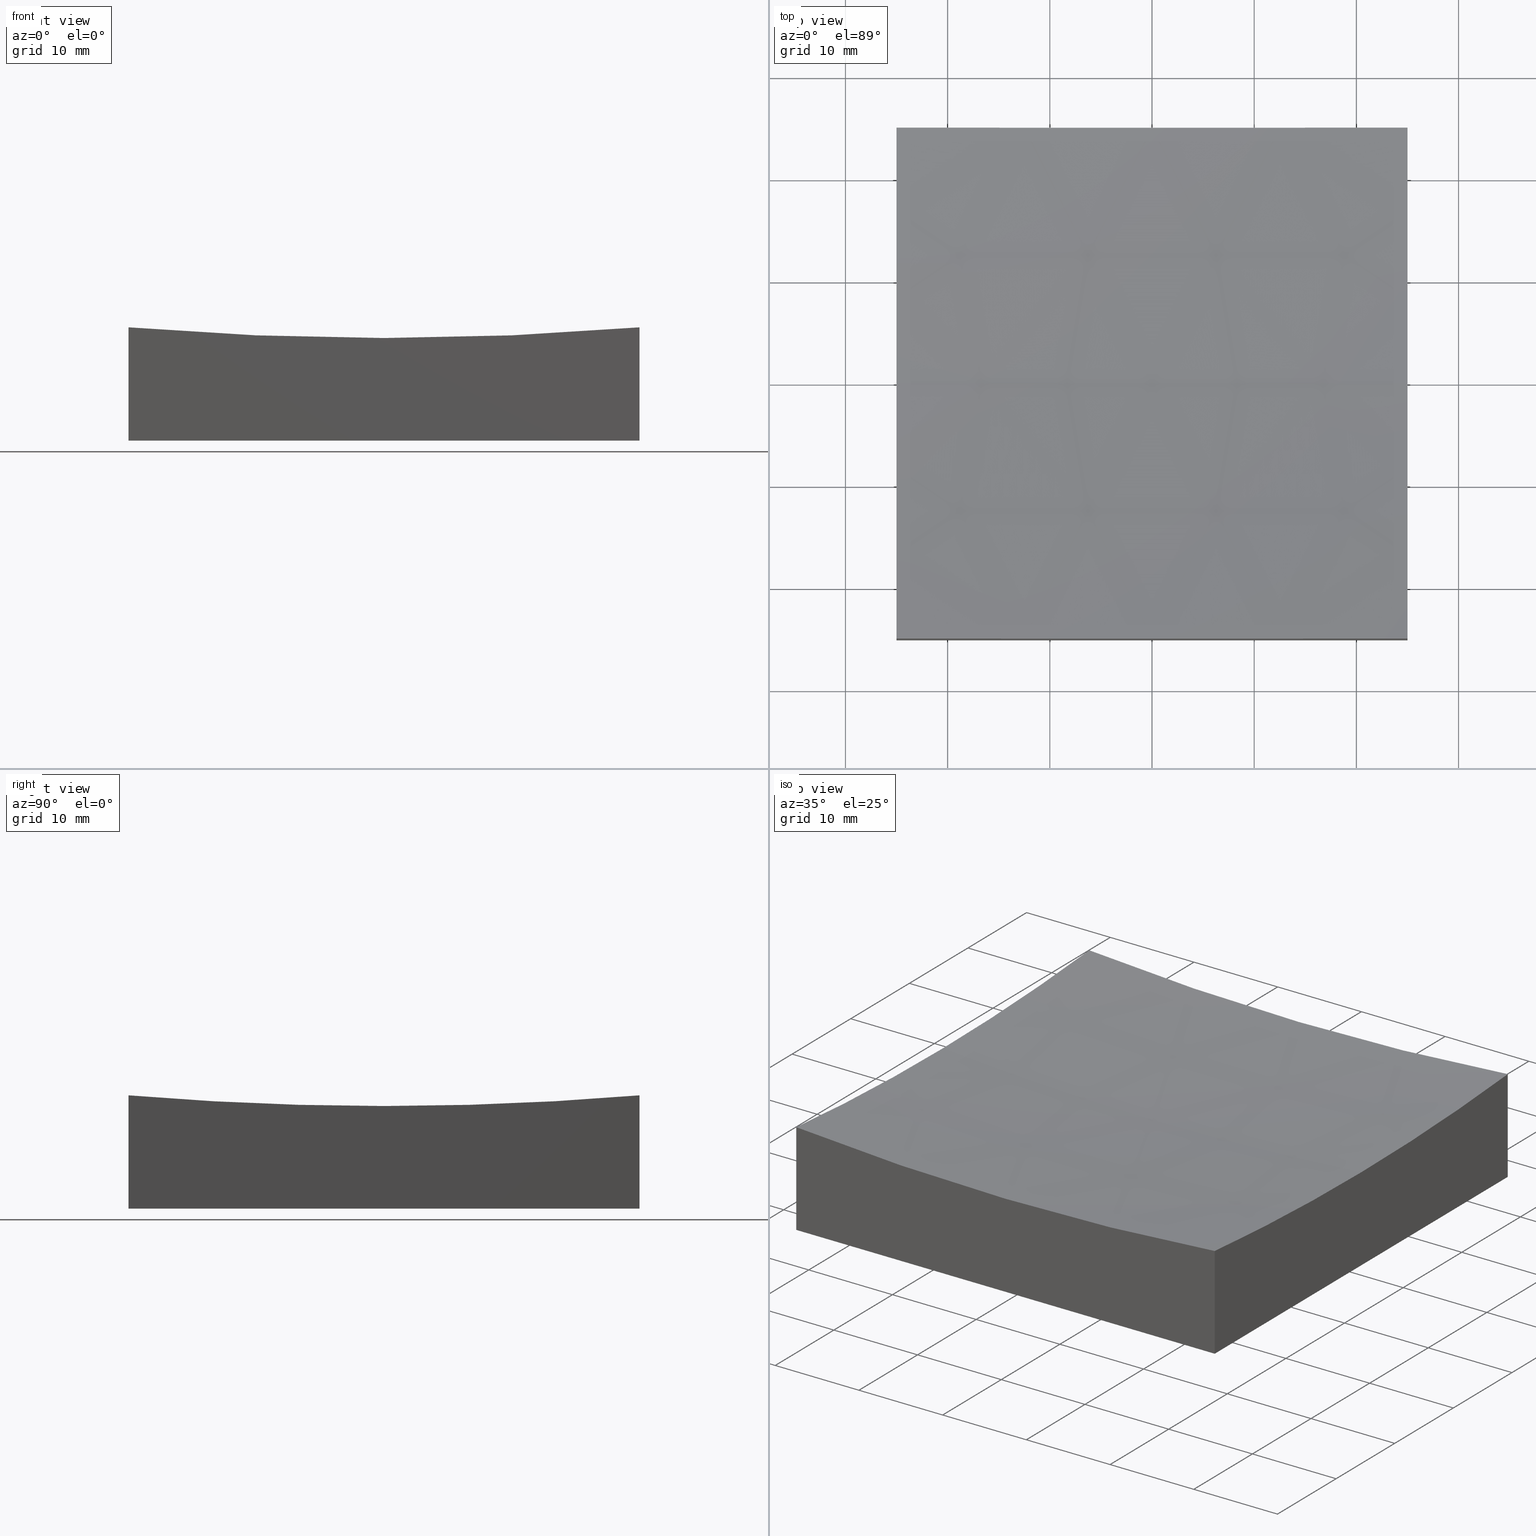
[diagram: canonical four-view strip — front | top / right | iso, engineering-drawing reading convention]
A machine part, canonical four-view strip (front | top / right | iso — engineering-drawing reading convention). The complete STEP part file that produces these views, byte-faithful:
ISO-10303-21;
HEADER;
FILE_DESCRIPTION (( 'STEP AP214' ),
    '1' );
FILE_NAME ('270053.STEP',
    '2020-06-08T03:46:58',
    ( '' ),
    ( '' ),
    'SwSTEP 2.0',
    'SolidWorks 2019',
    '' );
FILE_SCHEMA (( 'AUTOMOTIVE_DESIGN' ));
ENDSEC;

DATA;
#1 = ORIENTED_EDGE ( 'NONE', *, *, #73, .T. ) ;
#2 = ORIENTED_EDGE ( 'NONE', *, *, #36, .T. ) ;
#3 = AXIS2_PLACEMENT_3D ( 'NONE', #153, #94, #178 ) ;
#4 = FACE_OUTER_BOUND ( 'NONE', #246, .T. ) ;
#5 = ORIENTED_EDGE ( 'NONE', *, *, #174, .T. ) ;
#6 = FACE_OUTER_BOUND ( 'NONE', #11, .T. ) ;
#7 = DIRECTION ( 'NONE',  ( -0.0000000000000000000, 1.000000000000000000, 0.0000000000000000000 ) ) ;
#8 = ORIENTED_EDGE ( 'NONE', *, *, #233, .F. ) ;
#9 = DIRECTION ( 'NONE',  ( 0.0000000000000000000, 1.000000000000000000, 0.0000000000000000000 ) ) ;
#10 = DIRECTION ( 'NONE',  ( -0.0000000000000000000, 1.000000000000000000, 0.0000000000000000000 ) ) ;
#11 = EDGE_LOOP ( 'NONE', ( #127, #74, #135, #8, #23 ) ) ;
#12 = PRODUCT ( '270053', '270053', '', ( #228 ) ) ;
#13 = AXIS2_PLACEMENT_3D ( 'NONE', #236, #9, #46 ) ;
#14 = SURFACE_STYLE_FILL_AREA ( #71 ) ;
#15 = APPLICATION_CONTEXT ( 'automotive_design' ) ;
#16 = DIRECTION ( 'NONE',  ( 6.938893903907228378E-17, -1.000000000000000000, 0.0000000000000000000 ) ) ;
#17 = PRESENTATION_STYLE_ASSIGNMENT (( #192 ) ) ;
#18 = LINE ( 'NONE', #43, #232 ) ;
#19 = CARTESIAN_POINT ( 'NONE',  ( -25.00000000000000711, 24.99999999999999645, 11.09061780467546221 ) ) ;
#20 = EDGE_CURVE ( 'NONE', #110, #96, #18, .T. ) ;
#21 = CARTESIAN_POINT ( 'NONE',  ( 3.784158609365321758E-14, -25.00000000000000711, 309.0000000000000000 ) ) ;
#22 =( NAMED_UNIT ( * ) SI_UNIT ( $, .STERADIAN. ) SOLID_ANGLE_UNIT ( ) );
#23 = ORIENTED_EDGE ( 'NONE', *, *, #54, .F. ) ;
#24 = DIRECTION ( 'NONE',  ( 0.0000000000000000000, 1.000000000000000000, 0.0000000000000000000 ) ) ;
#25 = LINE ( 'NONE', #95, #191 ) ;
#26 = ADVANCED_FACE ( 'NONE', ( #68 ), #84, .F. ) ;
#27 = CARTESIAN_POINT ( 'NONE',  ( -25.00000000000000000, -25.00000000000000711, 50.00000000000000000 ) ) ;
#28 = DIRECTION ( 'NONE',  ( -0.0000000000000000000, -0.0000000000000000000, -1.000000000000000000 ) ) ;
#29 = APPLICATION_CONTEXT ( 'automotive_design' ) ;
#30 = ORIENTED_EDGE ( 'NONE', *, *, #36, .F. ) ;
#31 = EDGE_CURVE ( 'NONE', #155, #214, #158, .T. ) ;
#32 = AXIS2_PLACEMENT_3D ( 'NONE', #175, #162, #220 ) ;
#33 = EDGE_CURVE ( 'NONE', #96, #219, #231, .T. ) ;
#34 = ORIENTED_EDGE ( 'NONE', *, *, #241, .T. ) ;
#35 = SURFACE_SIDE_STYLE ('',( #14 ) ) ;
#36 = EDGE_CURVE ( 'NONE', #164, #212, #183, .T. ) ;
#37 = CARTESIAN_POINT ( 'NONE',  ( -25.00000000000000355, 24.99999999999999645, 50.00000000000000000 ) ) ;
#38 =( NAMED_UNIT ( * ) PLANE_ANGLE_UNIT ( ) SI_UNIT ( $, .RADIAN. ) );
#39 = PLANE ( 'NONE',  #59 ) ;
#40 = MANIFOLD_SOLID_BREP ( '�г�-��ת2', #206 ) ;
#41 = SURFACE_SIDE_STYLE ('',( #56 ) ) ;
#42 = AXIS2_PLACEMENT_3D ( 'NONE', #136, #7, #207 ) ;
#43 = CARTESIAN_POINT ( 'NONE',  ( -25.00000000000000355, 24.99999999999999645, 0.0000000000000000000 ) ) ;
#44 = CARTESIAN_POINT ( 'NONE',  ( -25.00000000000000355, -1.734723475976810250E-15, 309.0000000000000000 ) ) ;
#45 = PRODUCT_DEFINITION_FORMATION_WITH_SPECIFIED_SOURCE ( '�κ�', '', #12, .NOT_KNOWN. ) ;
#46 = DIRECTION ( 'NONE',  ( 0.0000000000000000000, 0.0000000000000000000, 1.000000000000000000 ) ) ;
#47 = DIRECTION ( 'NONE',  ( 0.0000000000000000000, 0.0000000000000000000, -1.000000000000000000 ) ) ;
#48 = ORIENTED_EDGE ( 'NONE', *, *, #180, .F. ) ;
#49 = PLANE ( 'NONE',  #171 ) ;
#50 = ADVANCED_FACE ( 'NONE', ( #213 ), #39, .F. ) ;
#51 = AXIS2_PLACEMENT_3D ( 'NONE', #21, #109, #90 ) ;
#52 = CIRCLE ( 'NONE', #210, 298.9565185775348368 ) ;
#53 = APPLICATION_PROTOCOL_DEFINITION ( 'draft international standard', 'automotive_design', 1998, #29 ) ;
#54 = EDGE_CURVE ( 'NONE', #245, #189, #98, .T. ) ;
#55 = AXIS2_PLACEMENT_3D ( 'NONE', #157, #60, #47 ) ;
#56 = SURFACE_STYLE_FILL_AREA ( #70 ) ;
#57 = SPHERICAL_SURFACE ( 'NONE', #42, 299.9999999999999432 ) ;
#58 = CARTESIAN_POINT ( 'NONE',  ( -25.00000000000000355, 3.061616997868399214E-15, 10.04348142246513831 ) ) ;
#59 = AXIS2_PLACEMENT_3D ( 'NONE', #88, #195, #172 ) ;
#60 = DIRECTION ( 'NONE',  ( 0.0000000000000000000, -1.000000000000000000, 0.0000000000000000000 ) ) ;
#61 = SHAPE_DEFINITION_REPRESENTATION ( #65, #179 ) ;
#62 = EDGE_CURVE ( 'NONE', #188, #219, #148, .T. ) ;
#63 = CARTESIAN_POINT ( 'NONE',  ( -25.00000000000000355, 24.99999999999999645, 50.00000000000000000 ) ) ;
#64 = APPLICATION_PROTOCOL_DEFINITION ( 'draft international standard', 'automotive_design', 1998, #15 ) ;
#65 = PRODUCT_DEFINITION_SHAPE ( 'NONE', 'NONE',  #149 ) ;
#66 = UNCERTAINTY_MEASURE_WITH_UNIT (LENGTH_MEASURE( 1.000000000000000082E-05 ), #196, 'distance_accuracy_value', 'NONE');
#67 = DIRECTION ( 'NONE',  ( 0.0000000000000000000, 0.0000000000000000000, 1.000000000000000000 ) ) ;
#68 = FACE_OUTER_BOUND ( 'NONE', #131, .T. ) ;
#69 = DIRECTION ( 'NONE',  ( 1.000000000000000000, 0.0000000000000000000, 3.700743415417189125E-16 ) ) ;
#70 = FILL_AREA_STYLE ('',( #143 ) ) ;
#71 = FILL_AREA_STYLE ('',( #139 ) ) ;
#72 =( GEOMETRIC_REPRESENTATION_CONTEXT ( 3 ) GLOBAL_UNCERTAINTY_ASSIGNED_CONTEXT ( ( #218 ) ) GLOBAL_UNIT_ASSIGNED_CONTEXT ( ( #147, #38, #103 ) ) REPRESENTATION_CONTEXT ( 'NONE', 'WORKASPACE' ) );
#73 = EDGE_CURVE ( 'NONE', #189, #212, #239, .T. ) ;
#74 = ORIENTED_EDGE ( 'NONE', *, *, #165, .T. ) ;
#75 = DIRECTION ( 'NONE',  ( 0.0000000000000000000, -0.0000000000000000000, 1.000000000000000000 ) ) ;
#76 = ORIENTED_EDGE ( 'NONE', *, *, #233, .T. ) ;
#77 = DIRECTION ( 'NONE',  ( -6.938893903907228378E-17, 1.000000000000000000, 0.0000000000000000000 ) ) ;
#78 = DIRECTION ( 'NONE',  ( 6.938893903907228378E-17, -1.000000000000000000, 0.0000000000000000000 ) ) ;
#79 = ORIENTED_EDGE ( 'NONE', *, *, #137, .F. ) ;
#80 = CARTESIAN_POINT ( 'NONE',  ( 24.99999999999999645, 24.99999999999999645, 11.09061780467546221 ) ) ;
#81 = ORIENTED_EDGE ( 'NONE', *, *, #91, .T. ) ;
#82 = FACE_OUTER_BOUND ( 'NONE', #168, .T. ) ;
#83 = AXIS2_PLACEMENT_3D ( 'NONE', #37, #104, #235 ) ;
#84 = PLANE ( 'NONE',  #83 ) ;
#85 = CARTESIAN_POINT ( 'NONE',  ( 24.99999999999999645, 1.734723475976804333E-15, 309.0000000000000000 ) ) ;
#86 = SURFACE_STYLE_USAGE ( .BOTH. , #41 ) ;
#87 = DIRECTION ( 'NONE',  ( -0.0000000000000000000, -0.0000000000000000000, -1.000000000000000000 ) ) ;
#88 = CARTESIAN_POINT ( 'NONE',  ( -25.00000000000000000, -25.00000000000000711, 50.00000000000000000 ) ) ;
#89 =( GEOMETRIC_REPRESENTATION_CONTEXT ( 3 ) GLOBAL_UNCERTAINTY_ASSIGNED_CONTEXT ( ( #130 ) ) GLOBAL_UNIT_ASSIGNED_CONTEXT ( ( #146, #203, #22 ) ) REPRESENTATION_CONTEXT ( 'NONE', 'WORKASPACE' ) );
#90 = DIRECTION ( 'NONE',  ( 0.0000000000000000000, 0.0000000000000000000, 1.000000000000000000 ) ) ;
#91 = EDGE_CURVE ( 'NONE', #214, #164, #159, .T. ) ;
#92 = VECTOR ( 'NONE', #87, 1000.000000000000000 ) ;
#93 = ORIENTED_EDGE ( 'NONE', *, *, #31, .F. ) ;
#94 = DIRECTION ( 'NONE',  ( 1.224646799147353207E-16, 1.000000000000000000, 3.574777501448733644E-32 ) ) ;
#95 = CARTESIAN_POINT ( 'NONE',  ( 25.00000000000000000, -25.00000000000000711, 50.00000000000000000 ) ) ;
#96 = VERTEX_POINT ( 'NONE', #114 ) ;
#97 = CARTESIAN_POINT ( 'NONE',  ( -25.00000000000000000, -25.00000000000000711, 0.0000000000000000000 ) ) ;
#98 = CIRCLE ( 'NONE', #176, 298.9565185775348368 ) ;
#99 = SPHERICAL_SURFACE ( 'NONE', #242, 299.9999999999999432 ) ;
#100 = ORIENTED_EDGE ( 'NONE', *, *, #165, .F. ) ;
#101 = VECTOR ( 'NONE', #134, 1000.000000000000000 ) ;
#102 = ORIENTED_EDGE ( 'NONE', *, *, #185, .T. ) ;
#103 =( NAMED_UNIT ( * ) SI_UNIT ( $, .STERADIAN. ) SOLID_ANGLE_UNIT ( ) );
#104 = DIRECTION ( 'NONE',  ( 1.000000000000000000, 6.938893903907228378E-17, -0.0000000000000000000 ) ) ;
#105 = DIRECTION ( 'NONE',  ( 1.000000000000000000, 6.938893903907228378E-17, -0.0000000000000000000 ) ) ;
#106 = ORIENTED_EDGE ( 'NONE', *, *, #20, .F. ) ;
#107 = CARTESIAN_POINT ( 'NONE',  ( 24.99999999999999645, 1.734723475976804333E-15, 309.0000000000000000 ) ) ;
#108 =( GEOMETRIC_REPRESENTATION_CONTEXT ( 3 ) GLOBAL_UNCERTAINTY_ASSIGNED_CONTEXT ( ( #66 ) ) GLOBAL_UNIT_ASSIGNED_CONTEXT ( ( #196, #250, #121 ) ) REPRESENTATION_CONTEXT ( 'NONE', 'WORKASPACE' ) );
#109 = DIRECTION ( 'NONE',  ( 0.0000000000000000000, 1.000000000000000000, 0.0000000000000000000 ) ) ;
#110 = VERTEX_POINT ( 'NONE', #117 ) ;
#111 = EDGE_LOOP ( 'NONE', ( #79, #129, #160, #1, #30 ) ) ;
#112 = PLANE ( 'NONE',  #32 ) ;
#113 = CARTESIAN_POINT ( 'NONE',  ( 1.437821085967289657E-13, 0.0000000000000000000, 9.000000000000063949 ) ) ;
#114 = CARTESIAN_POINT ( 'NONE',  ( 24.99999999999999645, 24.99999999999999645, 0.0000000000000000000 ) ) ;
#115 = PRODUCT_RELATED_PRODUCT_CATEGORY ( 'part', '', ( #12 ) ) ;
#116 = MECHANICAL_DESIGN_GEOMETRIC_PRESENTATION_REPRESENTATION (  '', ( #154 ), #89 ) ;
#117 = CARTESIAN_POINT ( 'NONE',  ( -25.00000000000000355, 24.99999999999999645, 0.0000000000000000000 ) ) ;
#118 = ORIENTED_EDGE ( 'NONE', *, *, #137, .T. ) ;
#119 = STYLED_ITEM ( 'NONE', ( #17 ), #179 ) ;
#120 = DIRECTION ( 'NONE',  ( -0.0000000000000000000, -0.0000000000000000000, -1.000000000000000000 ) ) ;
#121 =( NAMED_UNIT ( * ) SI_UNIT ( $, .STERADIAN. ) SOLID_ANGLE_UNIT ( ) );
#122 = ADVANCED_FACE ( 'NONE', ( #221 ), #57, .F. ) ;
#123 = PRODUCT_DEFINITION_CONTEXT ( 'detailed design', #29, 'design' ) ;
#124 = DIRECTION ( 'NONE',  ( -6.963113502515198163E-17, 1.000000000000000000, 0.0000000000000000000 ) ) ;
#125 = DIRECTION ( 'NONE',  ( 1.000000000000000000, 0.0000000000000000000, 0.0000000000000000000 ) ) ;
#126 = ADVANCED_FACE ( 'NONE', ( #82 ), #112, .T. ) ;
#127 = ORIENTED_EDGE ( 'NONE', *, *, #241, .F. ) ;
#128 = ADVANCED_FACE ( 'NONE', ( #4 ), #205, .T. ) ;
#129 = ORIENTED_EDGE ( 'NONE', *, *, #180, .T. ) ;
#130 = UNCERTAINTY_MEASURE_WITH_UNIT (LENGTH_MEASURE( 1.000000000000000082E-05 ), #146, 'distance_accuracy_value', 'NONE');
#131 = EDGE_LOOP ( 'NONE', ( #243, #81, #2, #227, #5 ) ) ;
#132 = DIRECTION ( 'NONE',  ( -6.963113502515198163E-17, 1.000000000000000000, 0.0000000000000000000 ) ) ;
#133 = CARTESIAN_POINT ( 'NONE',  ( 24.99999999999999645, 24.99999999999999645, 50.00000000000000000 ) ) ;
#134 = DIRECTION ( 'NONE',  ( 1.000000000000000000, 0.0000000000000000000, 0.0000000000000000000 ) ) ;
#135 = ORIENTED_EDGE ( 'NONE', *, *, #33, .F. ) ;
#136 = CARTESIAN_POINT ( 'NONE',  ( 3.784158609365321758E-14, 0.0000000000000000000, 309.0000000000000000 ) ) ;
#137 = EDGE_CURVE ( 'NONE', #151, #164, #163, .T. ) ;
#138 = PRESENTATION_LAYER_ASSIGNMENT (  '', '', ( #119 ) ) ;
#139 = FILL_AREA_STYLE_COLOUR ( '', #223 ) ;
#140 = VECTOR ( 'NONE', #16, 1000.000000000000000 ) ;
#141 = ADVANCED_FACE ( 'NONE', ( #6 ), #49, .T. ) ;
#142 = DIRECTION ( 'NONE',  ( 1.000000000000000000, 0.0000000000000000000, 0.0000000000000000000 ) ) ;
#143 = FILL_AREA_STYLE_COLOUR ( '', #190 ) ;
#144 = LINE ( 'NONE', #247, #92 ) ;
#145 = CIRCLE ( 'NONE', #55, 299.9999999999999432 ) ;
#146 =( LENGTH_UNIT ( ) NAMED_UNIT ( * ) SI_UNIT ( .MILLI., .METRE. ) );
#147 =( LENGTH_UNIT ( ) NAMED_UNIT ( * ) SI_UNIT ( .MILLI., .METRE. ) );
#148 = LINE ( 'NONE', #150, #101 ) ;
#149 = PRODUCT_DEFINITION ( 'δ֪', '', #45, #123 ) ;
#150 = CARTESIAN_POINT ( 'NONE',  ( -25.00000000000000000, -25.00000000000000711, 0.0000000000000000000 ) ) ;
#151 = VERTEX_POINT ( 'NONE', #113 ) ;
#152 = EDGE_LOOP ( 'NONE', ( #100, #224, #102, #240 ) ) ;
#153 = CARTESIAN_POINT ( 'NONE',  ( 3.784158609365321758E-14, 0.0000000000000000000, 309.0000000000000000 ) ) ;
#154 = STYLED_ITEM ( 'NONE', ( #248 ), #40 ) ;
#155 = VERTEX_POINT ( 'NONE', #209 ) ;
#156 = DIRECTION ( 'NONE',  ( 1.000000000000000000, 6.938893903907228378E-17, -0.0000000000000000000 ) ) ;
#157 = CARTESIAN_POINT ( 'NONE',  ( 3.784158609365321758E-14, 0.0000000000000000000, 309.0000000000000000 ) ) ;
#158 = CIRCLE ( 'NONE', #51, 298.9565185775348368 ) ;
#159 = CIRCLE ( 'NONE', #193, 298.9565185775348368 ) ;
#160 = ORIENTED_EDGE ( 'NONE', *, *, #54, .T. ) ;
#161 = DIRECTION ( 'NONE',  ( -0.0000000000000000000, -0.0000000000000000000, -1.000000000000000000 ) ) ;
#162 = DIRECTION ( 'NONE',  ( 0.0000000000000000000, 0.0000000000000000000, -1.000000000000000000 ) ) ;
#163 = CIRCLE ( 'NONE', #3, 299.9999999999999432 ) ;
#164 = VERTEX_POINT ( 'NONE', #58 ) ;
#165 = EDGE_CURVE ( 'NONE', #155, #219, #25, .T. ) ;
#166 = ORIENTED_EDGE ( 'NONE', *, *, #174, .F. ) ;
#167 = CARTESIAN_POINT ( 'NONE',  ( 0.0000000000000000000, 0.0000000000000000000, 0.0000000000000000000 ) ) ;
#168 = EDGE_LOOP ( 'NONE', ( #204, #200, #211, #166 ) ) ;
#169 = DIRECTION ( 'NONE',  ( -6.963113502515198163E-17, 1.000000000000000000, 0.0000000000000000000 ) ) ;
#170 = CARTESIAN_POINT ( 'NONE',  ( 24.99999999999999645, -9.629649721936179265E-32, 10.04348142246513831 ) ) ;
#171 = AXIS2_PLACEMENT_3D ( 'NONE', #133, #238, #77 ) ;
#172 = DIRECTION ( 'NONE',  ( 0.0000000000000000000, -0.0000000000000000000, 1.000000000000000000 ) ) ;
#173 = CARTESIAN_POINT ( 'NONE',  ( -25.00000000000000355, -1.734723475976810250E-15, 309.0000000000000000 ) ) ;
#174 = EDGE_CURVE ( 'NONE', #110, #188, #182, .T. ) ;
#175 = CARTESIAN_POINT ( 'NONE',  ( 0.0000000000000000000, 0.0000000000000000000, 0.0000000000000000000 ) ) ;
#176 = AXIS2_PLACEMENT_3D ( 'NONE', #107, #234, #252 ) ;
#177 = ORIENTED_EDGE ( 'NONE', *, *, #73, .F. ) ;
#178 = DIRECTION ( 'NONE',  ( -1.000000000000000000, 1.224646799147353207E-16, 0.0000000000000000000 ) ) ;
#179 = ADVANCED_BREP_SHAPE_REPRESENTATION ( '270053', ( #40, #201 ), #108 ) ;
#180 = EDGE_CURVE ( 'NONE', #151, #245, #145, .T. ) ;
#181 = CARTESIAN_POINT ( 'NONE',  ( -25.00000000000000355, 24.99999999999999645, 0.0000000000000000000 ) ) ;
#182 = LINE ( 'NONE', #181, #230 ) ;
#183 = CIRCLE ( 'NONE', #229, 298.9565185775348368 ) ;
#184 = AXIS2_PLACEMENT_3D ( 'NONE', #237, #24, #75 ) ;
#185 = EDGE_CURVE ( 'NONE', #214, #188, #208, .T. ) ;
#186 = CARTESIAN_POINT ( 'NONE',  ( 3.784158609365321758E-14, 0.0000000000000000000, 309.0000000000000000 ) ) ;
#187 = EDGE_LOOP ( 'NONE', ( #48, #118, #226, #93, #34 ) ) ;
#188 = VERTEX_POINT ( 'NONE', #97 ) ;
#189 = VERTEX_POINT ( 'NONE', #80 ) ;
#190 = COLOUR_RGB ( '',1.000000000000000000, 1.000000000000000000, 1.000000000000000000 ) ;
#191 = VECTOR ( 'NONE', #161, 1000.000000000000000 ) ;
#192 = SURFACE_STYLE_USAGE ( .BOTH. , #35 ) ;
#193 = AXIS2_PLACEMENT_3D ( 'NONE', #44, #156, #132 ) ;
#194 = ADVANCED_FACE ( 'NONE', ( #222 ), #99, .F. ) ;
#195 = DIRECTION ( 'NONE',  ( 0.0000000000000000000, 1.000000000000000000, 0.0000000000000000000 ) ) ;
#196 =( LENGTH_UNIT ( ) NAMED_UNIT ( * ) SI_UNIT ( .MILLI., .METRE. ) );
#197 = CARTESIAN_POINT ( 'NONE',  ( 24.99999999999999645, 24.99999999999999645, 0.0000000000000000000 ) ) ;
#198 = CARTESIAN_POINT ( 'NONE',  ( -25.00000000000000000, -25.00000000000000711, 11.09061780467546221 ) ) ;
#199 = PRESENTATION_LAYER_ASSIGNMENT (  '', '', ( #154 ) ) ;
#200 = ORIENTED_EDGE ( 'NONE', *, *, #33, .T. ) ;
#201 = AXIS2_PLACEMENT_3D ( 'NONE', #167, #67, #142 ) ;
#202 = ORIENTED_EDGE ( 'NONE', *, *, #215, .F. ) ;
#203 =( NAMED_UNIT ( * ) PLANE_ANGLE_UNIT ( ) SI_UNIT ( $, .RADIAN. ) );
#204 = ORIENTED_EDGE ( 'NONE', *, *, #20, .T. ) ;
#205 = PLANE ( 'NONE',  #184 ) ;
#206 = CLOSED_SHELL ( 'NONE', ( #194, #128, #26, #50, #141, #126, #122 ) ) ;
#207 = DIRECTION ( 'NONE',  ( 1.000000000000000000, 0.0000000000000000000, 3.700743415417189125E-16 ) ) ;
#208 = LINE ( 'NONE', #27, #251 ) ;
#209 = CARTESIAN_POINT ( 'NONE',  ( 25.00000000000000000, -25.00000000000000711, 11.09061780467546221 ) ) ;
#210 = AXIS2_PLACEMENT_3D ( 'NONE', #85, #105, #124 ) ;
#211 = ORIENTED_EDGE ( 'NONE', *, *, #62, .F. ) ;
#212 = VERTEX_POINT ( 'NONE', #19 ) ;
#213 = FACE_OUTER_BOUND ( 'NONE', #152, .T. ) ;
#214 = VERTEX_POINT ( 'NONE', #198 ) ;
#215 = EDGE_CURVE ( 'NONE', #212, #110, #244, .T. ) ;
#216 = MECHANICAL_DESIGN_GEOMETRIC_PRESENTATION_REPRESENTATION (  '', ( #119 ), #72 ) ;
#217 = DIRECTION ( 'NONE',  ( 1.000000000000000000, 6.938893903907228378E-17, -0.0000000000000000000 ) ) ;
#218 = UNCERTAINTY_MEASURE_WITH_UNIT (LENGTH_MEASURE( 1.000000000000000082E-05 ), #147, 'distance_accuracy_value', 'NONE');
#219 = VERTEX_POINT ( 'NONE', #249 ) ;
#220 = DIRECTION ( 'NONE',  ( -1.000000000000000000, 0.0000000000000000000, -0.0000000000000000000 ) ) ;
#221 = FACE_OUTER_BOUND ( 'NONE', #111, .T. ) ;
#222 = FACE_OUTER_BOUND ( 'NONE', #187, .T. ) ;
#223 = COLOUR_RGB ( '',1.000000000000000000, 1.000000000000000000, 1.000000000000000000 ) ;
#224 = ORIENTED_EDGE ( 'NONE', *, *, #31, .T. ) ;
#225 = VECTOR ( 'NONE', #120, 1000.000000000000000 ) ;
#226 = ORIENTED_EDGE ( 'NONE', *, *, #91, .F. ) ;
#227 = ORIENTED_EDGE ( 'NONE', *, *, #215, .T. ) ;
#228 = PRODUCT_CONTEXT ( 'NONE', #15, 'mechanical' ) ;
#229 = AXIS2_PLACEMENT_3D ( 'NONE', #173, #217, #169 ) ;
#230 = VECTOR ( 'NONE', #78, 1000.000000000000000 ) ;
#231 = LINE ( 'NONE', #197, #140 ) ;
#232 = VECTOR ( 'NONE', #125, 1000.000000000000000 ) ;
#233 = EDGE_CURVE ( 'NONE', #189, #96, #144, .T. ) ;
#234 = DIRECTION ( 'NONE',  ( 1.000000000000000000, 6.938893903907228378E-17, -0.0000000000000000000 ) ) ;
#235 = DIRECTION ( 'NONE',  ( -6.938893903907228378E-17, 1.000000000000000000, 0.0000000000000000000 ) ) ;
#236 = CARTESIAN_POINT ( 'NONE',  ( 3.784158609365321758E-14, 24.99999999999999645, 309.0000000000000000 ) ) ;
#237 = CARTESIAN_POINT ( 'NONE',  ( -25.00000000000000355, 24.99999999999999645, 50.00000000000000000 ) ) ;
#238 = DIRECTION ( 'NONE',  ( 1.000000000000000000, 6.938893903907228378E-17, -0.0000000000000000000 ) ) ;
#239 = CIRCLE ( 'NONE', #13, 298.9565185775348368 ) ;
#240 = ORIENTED_EDGE ( 'NONE', *, *, #62, .T. ) ;
#241 = EDGE_CURVE ( 'NONE', #155, #245, #52, .T. ) ;
#242 = AXIS2_PLACEMENT_3D ( 'NONE', #186, #10, #69 ) ;
#243 = ORIENTED_EDGE ( 'NONE', *, *, #185, .F. ) ;
#244 = LINE ( 'NONE', #63, #225 ) ;
#245 = VERTEX_POINT ( 'NONE', #170 ) ;
#246 = EDGE_LOOP ( 'NONE', ( #177, #76, #106, #202 ) ) ;
#247 = CARTESIAN_POINT ( 'NONE',  ( 24.99999999999999645, 24.99999999999999645, 50.00000000000000000 ) ) ;
#248 = PRESENTATION_STYLE_ASSIGNMENT (( #86 ) ) ;
#249 = CARTESIAN_POINT ( 'NONE',  ( 25.00000000000000000, -25.00000000000000711, 0.0000000000000000000 ) ) ;
#250 =( NAMED_UNIT ( * ) PLANE_ANGLE_UNIT ( ) SI_UNIT ( $, .RADIAN. ) );
#251 = VECTOR ( 'NONE', #28, 1000.000000000000000 ) ;
#252 = DIRECTION ( 'NONE',  ( -6.963113502515198163E-17, 1.000000000000000000, 0.0000000000000000000 ) ) ;
ENDSEC;
END-ISO-10303-21;
